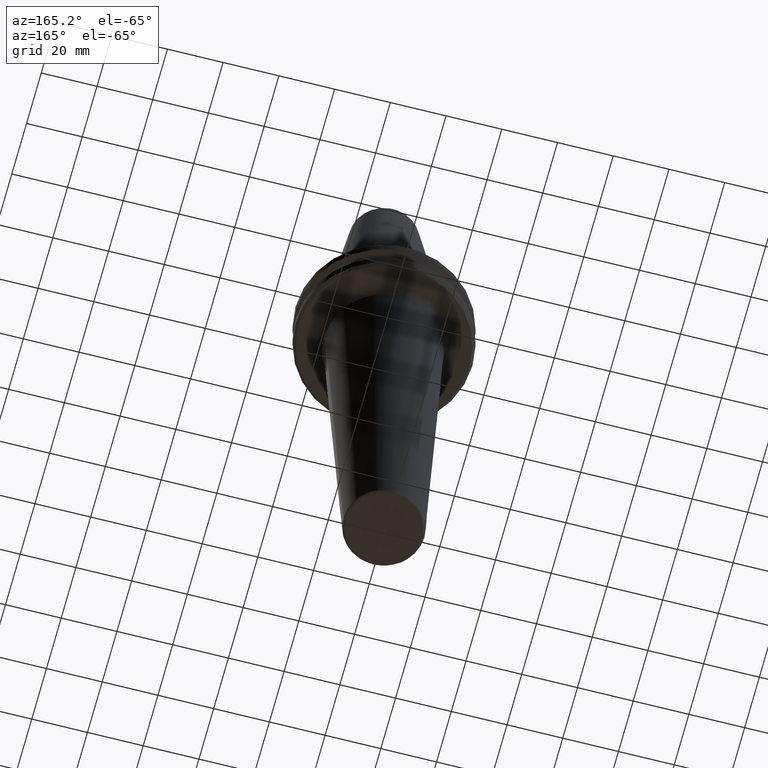
[diagram: clean part render]
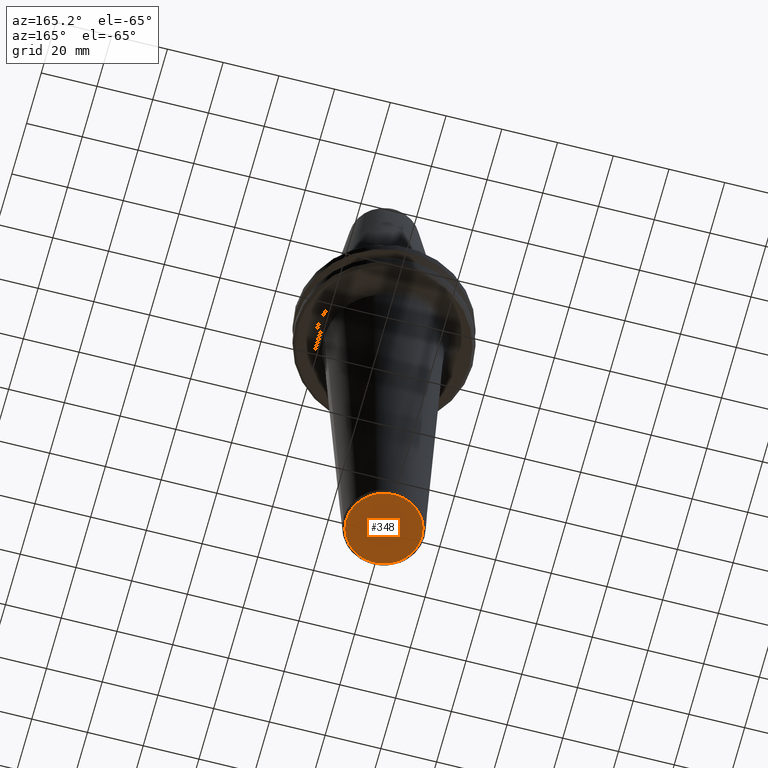
[diagram: same view with one face highlighted and labeled with its STEP entity id]
A machine part, auxiliary view. The second image highlights one B-rep face of the part: STEP entity #348.
In plain terms, the highlighted planar face has unit normal (0, 0, -1).
Its self-contained STEP definition (entity closure, byte-faithful):
#25 = AXIS2_PLACEMENT_3D ( 'NONE', #84, #1423, #92 ) ;
#84 = CARTESIAN_POINT ( 'NONE',  ( 0.0000000000000000000, 0.0000000000000000000, -169.0999999999999900 ) ) ;
#92 = DIRECTION ( 'NONE',  ( -1.000000000000000000, 0.0000000000000000000, -0.0000000000000000000 ) ) ;
#101 = PLANE ( 'NONE',  #25 ) ;
#160 = CARTESIAN_POINT ( 'NONE',  ( -13.54398801205979900, 1.683128331151364700E-015, -169.0999999999999900 ) ) ;
#181 = CARTESIAN_POINT ( 'NONE',  ( -13.54398801205979900, 1.683128331151364700E-015, -169.0999999999999900 ) ) ;
#215 = CARTESIAN_POINT ( 'NONE',  ( -13.54398801205980400, -27.08797602411959800, -169.0999999999999900 ) ) ;
#282 = EDGE_CURVE ( 'NONE', #302, #1518, #480, .T. ) ;
#296 = CARTESIAN_POINT ( 'NONE',  ( 13.54398801205979900, 27.08797602411959800, -169.0999999999999900 ) ) ;
#302 = VERTEX_POINT ( 'NONE', #535 ) ;
#348 = ADVANCED_FACE ( 'NONE', ( #835 ), #101, .T. ) ;
#430 = CARTESIAN_POINT ( 'NONE',  ( 13.54398801205979900, 0.0000000000000000000, -169.0999999999999900 ) ) ;
#480 =( BOUNDED_CURVE ( )  B_SPLINE_CURVE ( 3, ( #181, #215, #958, #1160 ),
 .UNSPECIFIED., .F., .F. ) 
 B_SPLINE_CURVE_WITH_KNOTS ( ( 4, 4 ),
 ( 0.0000000000000000000, 1.000000000000000000 ),
 .UNSPECIFIED. ) 
 CURVE ( )  GEOMETRIC_REPRESENTATION_ITEM ( )  RATIONAL_B_SPLINE_CURVE ( ( 1.000000000000000000, 0.3333333333333333700, 0.3333333333333333700, 1.000000000000000000 ) ) 
 REPRESENTATION_ITEM ( '' )  );
#535 = CARTESIAN_POINT ( 'NONE',  ( -13.54398801205979900, 1.683128331151364700E-015, -169.0999999999999900 ) ) ;
#663 =( BOUNDED_CURVE ( )  B_SPLINE_CURVE ( 3, ( #430, #296, #1058, #160 ),
 .UNSPECIFIED., .F., .T. ) 
 B_SPLINE_CURVE_WITH_KNOTS ( ( 4, 4 ),
 ( 0.0000000000000000000, 1.000000000000000000 ),
 .UNSPECIFIED. ) 
 CURVE ( )  GEOMETRIC_REPRESENTATION_ITEM ( )  RATIONAL_B_SPLINE_CURVE ( ( 1.000000000000000000, 0.3333333333333333700, 0.3333333333333333700, 1.000000000000000000 ) ) 
 REPRESENTATION_ITEM ( '' )  );
#776 = EDGE_LOOP ( 'NONE', ( #920, #783 ) ) ;
#783 = ORIENTED_EDGE ( 'NONE', *, *, #282, .F. ) ;
#835 = FACE_OUTER_BOUND ( 'NONE', #776, .T. ) ;
#920 = ORIENTED_EDGE ( 'NONE', *, *, #1563, .F. ) ;
#958 = CARTESIAN_POINT ( 'NONE',  ( 13.54398801205979900, -27.08797602411959800, -169.0999999999999900 ) ) ;
#1058 = CARTESIAN_POINT ( 'NONE',  ( -13.54398801205979600, 27.08797602411959800, -169.0999999999999900 ) ) ;
#1160 = CARTESIAN_POINT ( 'NONE',  ( 13.54398801205979900, 0.0000000000000000000, -169.0999999999999900 ) ) ;
#1423 = DIRECTION ( 'NONE',  ( 0.0000000000000000000, 0.0000000000000000000, -1.000000000000000000 ) ) ;
#1518 = VERTEX_POINT ( 'NONE', #1561 ) ;
#1561 = CARTESIAN_POINT ( 'NONE',  ( 13.54398801205979900, 0.0000000000000000000, -169.0999999999999900 ) ) ;
#1563 = EDGE_CURVE ( 'NONE', #1518, #302, #663, .T. ) ;